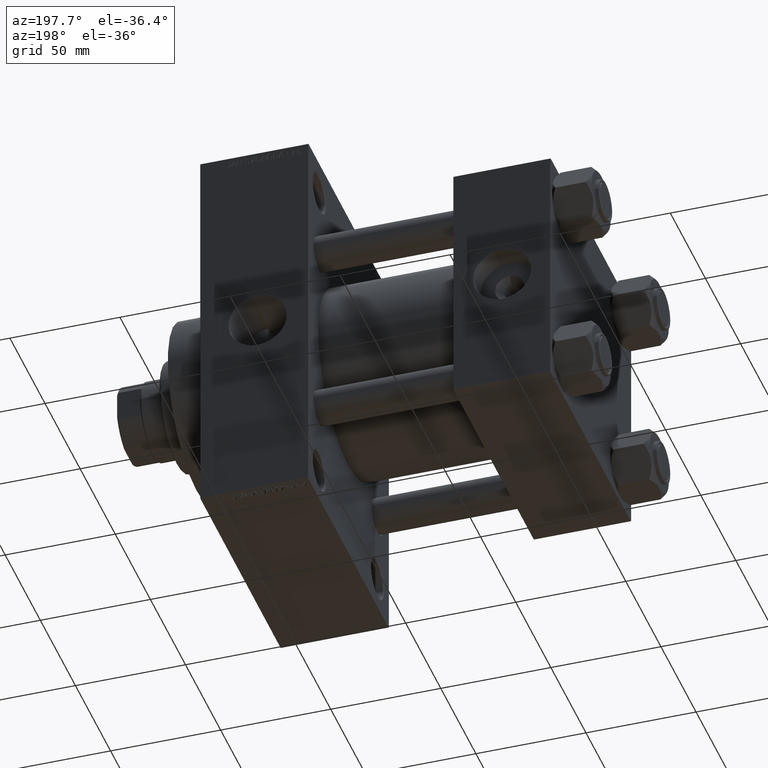
[diagram: clean part render]
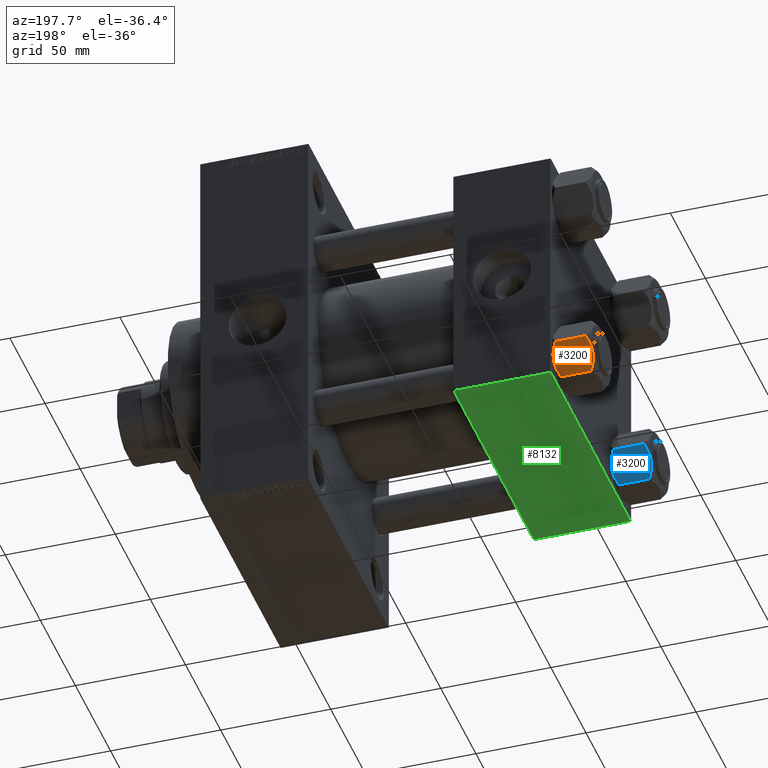
[diagram: same view with three faces highlighted in distinct colors, each labeled with its STEP entity id]
A machine part, auxiliary view with three faces highlighted in distinct colors.
Their STEP definitions:

[orange] entity #3200 — the highlighted planar face has unit normal (0, -0.866, 0.5).
#349 = ORIENTED_EDGE ( 'NONE', *, *, #29202, .F. ) ;
#1194 = CARTESIAN_POINT ( 'NONE',  ( -9.439480280627259745, -10.70497417113492311, -0.7317196846281081024 ) ) ;
#2113 = CARTESIAN_POINT ( 'NONE',  ( -15.22736220980736199, -0.6800686015852018818, -16.29368822085855584 ) ) ;
#2571 = PLANE ( 'NONE',  #9098 ) ;
#3150 = EDGE_LOOP ( 'NONE', ( #8799, #44068, #3888, #22445, #33556, #4075, #47022, #38614, #349, #12251 ) ) ;
#3200 = ADVANCED_FACE ( 'NONE', ( #14134 ), #2571, .F. ) ;
#3471 = CARTESIAN_POINT ( 'NONE',  ( -13.36540581434588226, -3.905071680002305534, -0.3836066851120543686 ) ) ;
#3532 = DIRECTION ( 'NONE',  ( -0.4999999999999994449, 0.8660254037844390407, 0.000000000000000000 ) ) ;
#3888 = ORIENTED_EDGE ( 'NONE', *, *, #19188, .F. ) ;
#4075 = ORIENTED_EDGE ( 'NONE', *, *, #6333, .F. ) ;
#4980 = CARTESIAN_POINT ( 'NONE',  ( -11.71500000000000874, -6.763658403556459753, 0.000000000000000000 ) ) ;
#5102 = B_SPLINE_CURVE_WITH_KNOTS ( 'NONE', 3,
 ( #18957, #34319, #34074, #45138, #6661, #22731, #49419, #41390 ),
 .UNSPECIFIED., .F., .F.,
 ( 4, 2, 2, 4 ),
 ( 4.472842641813524291E-07, 0.003945636373369312659, 0.005918230917921874813, 0.007890825462474436100 ),
 .UNSPECIFIED. ) ;
#5216 = DIRECTION ( 'NONE',  ( 0.4999999999999994449, -0.8660254037844390407, 0.000000000000000000 ) ) ;
#5640 = VECTOR ( 'NONE', #23017, 999.9999999999998863 ) ;
#5904 = CARTESIAN_POINT ( 'NONE',  ( -13.99051971937274530, -2.822342635977989289, -17.26828031537188934 ) ) ;
#5928 = EDGE_CURVE ( 'NONE', #28412, #33552, #24716, .T. ) ;
#6204 = EDGE_CURVE ( 'NONE', #39053, #34043, #33375, .T. ) ;
#6333 = EDGE_CURVE ( 'NONE', #28346, #39053, #24586, .T. ) ;
#6661 = CARTESIAN_POINT ( 'NONE',  ( -10.38662926516872353, -9.064464007571846338, -17.75691532989871746 ) ) ;
#6697 = DIRECTION ( 'NONE',  ( -0.000000000000000000, -0.000000000000000000, 1.000000000000000000 ) ) ;
#7135 = CARTESIAN_POINT ( 'NONE',  ( -11.71500000000000874, -6.763658403556459753, 0.000000000000000000 ) ) ;
#7256 = CARTESIAN_POINT ( 'NONE',  ( -15.52647173767732980, -0.1619957022864788043, -2.000000000000000000 ) ) ;
#7922 = CARTESIAN_POINT ( 'NONE',  ( -7.809999999999999609, -13.52731680711293727, -16.00000000000000000 ) ) ;
#8799 = ORIENTED_EDGE ( 'NONE', *, *, #5928, .F. ) ;
#9098 = AXIS2_PLACEMENT_3D ( 'NONE', #41084, #21947, #48380 ) ;
#9176 = EDGE_CURVE ( 'NONE', #28412, #35788, #21790, .T. ) ;
#9678 = CARTESIAN_POINT ( 'NONE',  ( -11.71500000000000874, -6.763658403556459753, -18.00000000000000000 ) ) ;
#11123 = CARTESIAN_POINT ( 'NONE',  ( -15.61999999999999567, 8.023367828467702033E-15, -16.00000000000000000 ) ) ;
#12251 = ORIENTED_EDGE ( 'NONE', *, *, #22512, .F. ) ;
#12856 = CARTESIAN_POINT ( 'NONE',  ( -7.809999999999999609, -13.52731680711293727, -16.00000000000000000 ) ) ;
#13661 = DIRECTION ( 'NONE',  ( 0.4999999999999994449, -0.8660254037844390407, 0.000000000000000000 ) ) ;
#14134 = FACE_OUTER_BOUND ( 'NONE', #3150, .T. ) ;
#14960 = CARTESIAN_POINT ( 'NONE',  ( -7.903528262322674358, -13.36532110482643354, -16.00000000000000000 ) ) ;
#15461 = LINE ( 'NONE', #7922, #5640 ) ;
#16293 = CARTESIAN_POINT ( 'NONE',  ( -7.903528262322674358, -13.36532110482643354, -2.000000000000000000 ) ) ;
#16542 = CARTESIAN_POINT ( 'NONE',  ( -11.05297796109637787, -7.910314210667872103, 9.086969458144130882E-15 ) ) ;
#17951 = CARTESIAN_POINT ( 'NONE',  ( -14.30591678195076533, -2.276058899034876681, -17.05261278537718894 ) ) ;
#18078 = CARTESIAN_POINT ( 'NONE',  ( -11.71500000000000874, -6.763658403556459753, 0.000000000000000000 ) ) ;
#18957 = CARTESIAN_POINT ( 'NONE',  ( -7.903528262322674358, -13.36532110482643354, -16.00000000000000000 ) ) ;
#19188 = EDGE_CURVE ( 'NONE', #19960, #35788, #24237, .T. ) ;
#19479 = B_SPLINE_CURVE_WITH_KNOTS ( 'NONE', 3,
 ( #4980, #16542, #23601, #1194, #35190, #20068, #23350, #16293 ),
 .UNSPECIFIED., .F., .F.,
 ( 4, 2, 2, 4 ),
 ( 0.007890825462474451713, 0.01181022244528557794, 0.01376992093669113758, 0.01572961942809669722 ),
 .UNSPECIFIED. ) ;
#19960 = VERTEX_POINT ( 'NONE', #44739 ) ;
#20068 = CARTESIAN_POINT ( 'NONE',  ( -8.506059550806618574, -12.32170630002230816, -1.434462921875002461 ) ) ;
#21174 = CARTESIAN_POINT ( 'NONE',  ( -15.52647173767732980, -0.1619957022864788043, -2.000000000000000000 ) ) ;
#21309 = EDGE_CURVE ( 'NONE', #38262, #49688, #15461, .T. ) ;
#21790 = LINE ( 'NONE', #33380, #28497 ) ;
#21947 = DIRECTION ( 'NONE',  ( 0.8660254037844390407, 0.4999999999999994449, 0.000000000000000000 ) ) ;
#22445 = ORIENTED_EDGE ( 'NONE', *, *, #37064, .F. ) ;
#22512 = EDGE_CURVE ( 'NONE', #33552, #47288, #5102, .T. ) ;
#22594 = CARTESIAN_POINT ( 'NONE',  ( -14.31545111198821552, -2.259544954993873311, -0.9142282604026915616 ) ) ;
#22656 = CARTESIAN_POINT ( 'NONE',  ( -7.809999999999999609, -13.52731680711293727, -16.00000000000000000 ) ) ;
#22731 = CARTESIAN_POINT ( 'NONE',  ( -11.04378428799595468, -7.926238119585997666, -17.94910618364700028 ) ) ;
#23017 = DIRECTION ( 'NONE',  ( -0.4999999999999994449, 0.8660254037844390407, 0.000000000000000000 ) ) ;
#23350 = CARTESIAN_POINT ( 'NONE',  ( -8.202637790192643052, -12.84724820552771085, -1.706311779141444829 ) ) ;
#23601 = CARTESIAN_POINT ( 'NONE',  ( -10.40215497533437805, -9.037572688741340343, -0.1971866459924474513 ) ) ;
#24237 = LINE ( 'NONE', #47391, #36112 ) ;
#24586 = LINE ( 'NONE', #28862, #30090 ) ;
#24632 = LINE ( 'NONE', #32435, #38892 ) ;
#24716 = LINE ( 'NONE', #22656, #30886 ) ;
#24771 = CARTESIAN_POINT ( 'NONE',  ( -12.37702203890362540, -5.617002596445037632, -18.00000000000000711 ) ) ;
#28346 = VERTEX_POINT ( 'NONE', #34785 ) ;
#28412 = VERTEX_POINT ( 'NONE', #12856 ) ;
#28497 = VECTOR ( 'NONE', #6697, 1000.000000000000000 ) ;
#28862 = CARTESIAN_POINT ( 'NONE',  ( -7.809999999999999609, -13.52731680711293727, -1.999999999999998224 ) ) ;
#29202 = EDGE_CURVE ( 'NONE', #47288, #38262, #32673, .T. ) ;
#30090 = VECTOR ( 'NONE', #5216, 999.9999999999998863 ) ;
#30886 = VECTOR ( 'NONE', #3532, 999.9999999999998863 ) ;
#31928 = DIRECTION ( 'NONE',  ( -0.000000000000000000, -0.000000000000000000, 1.000000000000000000 ) ) ;
#32435 = CARTESIAN_POINT ( 'NONE',  ( -15.61999999999999567, 8.023367828467702033E-15, -18.00000000000000000 ) ) ;
#32574 = CARTESIAN_POINT ( 'NONE',  ( -13.02784502466562699, -4.489744118371570281, -17.80281335400755083 ) ) ;
#32673 = B_SPLINE_CURVE_WITH_KNOTS ( 'NONE', 3,
 ( #9678, #24771, #32574, #5904, #17951, #33319, #2113, #44390 ),
 .UNSPECIFIED., .F., .F.,
 ( 4, 2, 2, 4 ),
 ( 0.007890825462474436100, 0.01181022244528555712, 0.01376992093669111850, 0.01572961942809667987 ),
 .UNSPECIFIED. ) ;
#33032 = EDGE_CURVE ( 'NONE', #49688, #28346, #24632, .T. ) ;
#33157 = CARTESIAN_POINT ( 'NONE',  ( -15.52647173767732980, -0.1619957022864788043, -16.00000000000000000 ) ) ;
#33195 = CARTESIAN_POINT ( 'NONE',  ( -12.38621571200405391, -5.601078687526916511, -0.05089381635300645190 ) ) ;
#33319 = CARTESIAN_POINT ( 'NONE',  ( -14.92394044919338825, -1.205610507090610461, -16.56553707812500065 ) ) ;
#33375 = B_SPLINE_CURVE_WITH_KNOTS ( 'NONE', 3,
 ( #7256, #48799, #22594, #3471, #45725, #33195, #37475, #18078 ),
 .UNSPECIFIED., .F., .F.,
 ( 4, 2, 2, 4 ),
 ( 4.472842641982724416E-07, 0.003945636373369324802, 0.005918230917921887824, 0.007890825462474451713 ),
 .UNSPECIFIED. ) ;
#33380 = CARTESIAN_POINT ( 'NONE',  ( -7.809999999999999609, -13.52731680711293727, -18.00000000000000000 ) ) ;
#33552 = VERTEX_POINT ( 'NONE', #14960 ) ;
#33556 = ORIENTED_EDGE ( 'NONE', *, *, #6204, .F. ) ;
#34043 = VERTEX_POINT ( 'NONE', #7135 ) ;
#34074 = CARTESIAN_POINT ( 'NONE',  ( -9.114548888011787753, -11.26777185211903820, -17.08577173959730899 ) ) ;
#34319 = CARTESIAN_POINT ( 'NONE',  ( -8.502393313253753249, -12.32805640973648664, -16.58801072835993651 ) ) ;
#34785 = CARTESIAN_POINT ( 'NONE',  ( -15.61999999999999567, 8.023367828467702033E-15, -1.999999999999998224 ) ) ;
#35190 = CARTESIAN_POINT ( 'NONE',  ( -9.124083218049237942, -11.25125790807803838, -0.9473872146228101698 ) ) ;
#35419 = CARTESIAN_POINT ( 'NONE',  ( -7.809999999999999609, -13.52731680711293727, -1.999999999999998224 ) ) ;
#35788 = VERTEX_POINT ( 'NONE', #35419 ) ;
#36112 = VECTOR ( 'NONE', #13661, 999.9999999999998863 ) ;
#37064 = EDGE_CURVE ( 'NONE', #34043, #19960, #19479, .T. ) ;
#37475 = CARTESIAN_POINT ( 'NONE',  ( -12.04818928091285635, -6.186557640478051567, 9.103910117089220044E-15 ) ) ;
#38262 = VERTEX_POINT ( 'NONE', #33157 ) ;
#38614 = ORIENTED_EDGE ( 'NONE', *, *, #21309, .F. ) ;
#38892 = VECTOR ( 'NONE', #31928, 1000.000000000000000 ) ;
#39053 = VERTEX_POINT ( 'NONE', #21174 ) ;
#40043 = CARTESIAN_POINT ( 'NONE',  ( -11.71500000000000874, -6.763658403556459753, -18.00000000000000000 ) ) ;
#41084 = CARTESIAN_POINT ( 'NONE',  ( -7.809999999999999609, -13.52731680711293727, -18.00000000000000000 ) ) ;
#41390 = CARTESIAN_POINT ( 'NONE',  ( -11.71500000000000874, -6.763658403556459753, -18.00000000000000000 ) ) ;
#44068 = ORIENTED_EDGE ( 'NONE', *, *, #9176, .T. ) ;
#44390 = CARTESIAN_POINT ( 'NONE',  ( -15.52647173767732980, -0.1619957022864788043, -16.00000000000000000 ) ) ;
#44739 = CARTESIAN_POINT ( 'NONE',  ( -7.903528262322674358, -13.36532110482643354, -2.000000000000000000 ) ) ;
#45138 = CARTESIAN_POINT ( 'NONE',  ( -10.06459418565412456, -9.622245127110602425, -17.61639331488794014 ) ) ;
#45725 = CARTESIAN_POINT ( 'NONE',  ( -13.04337073483128329, -4.462852799541069615, -0.2430846701012900901 ) ) ;
#47022 = ORIENTED_EDGE ( 'NONE', *, *, #33032, .F. ) ;
#47288 = VERTEX_POINT ( 'NONE', #40043 ) ;
#47391 = CARTESIAN_POINT ( 'NONE',  ( -7.809999999999999609, -13.52731680711293727, -1.999999999999998224 ) ) ;
#48380 = DIRECTION ( 'NONE',  ( -0.4999999999999993894, 0.8660254037844389297, 0.000000000000000000 ) ) ;
#48799 = CARTESIAN_POINT ( 'NONE',  ( -14.92760668674625002, -1.199260397376427090, -1.411989271640064825 ) ) ;
#49419 = CARTESIAN_POINT ( 'NONE',  ( -11.38181071908714692, -7.340759166634859945, -18.00000000000001421 ) ) ;
#49688 = VERTEX_POINT ( 'NONE', #11123 ) ;

[blue] entity #3200 — the highlighted planar face has unit normal (0, -0.866, 0.5).
#349 = ORIENTED_EDGE ( 'NONE', *, *, #29202, .F. ) ;
#1194 = CARTESIAN_POINT ( 'NONE',  ( -9.439480280627259745, -10.70497417113492311, -0.7317196846281081024 ) ) ;
#2113 = CARTESIAN_POINT ( 'NONE',  ( -15.22736220980736199, -0.6800686015852018818, -16.29368822085855584 ) ) ;
#2571 = PLANE ( 'NONE',  #9098 ) ;
#3150 = EDGE_LOOP ( 'NONE', ( #8799, #44068, #3888, #22445, #33556, #4075, #47022, #38614, #349, #12251 ) ) ;
#3200 = ADVANCED_FACE ( 'NONE', ( #14134 ), #2571, .F. ) ;
#3471 = CARTESIAN_POINT ( 'NONE',  ( -13.36540581434588226, -3.905071680002305534, -0.3836066851120543686 ) ) ;
#3532 = DIRECTION ( 'NONE',  ( -0.4999999999999994449, 0.8660254037844390407, 0.000000000000000000 ) ) ;
#3888 = ORIENTED_EDGE ( 'NONE', *, *, #19188, .F. ) ;
#4075 = ORIENTED_EDGE ( 'NONE', *, *, #6333, .F. ) ;
#4980 = CARTESIAN_POINT ( 'NONE',  ( -11.71500000000000874, -6.763658403556459753, 0.000000000000000000 ) ) ;
#5102 = B_SPLINE_CURVE_WITH_KNOTS ( 'NONE', 3,
 ( #18957, #34319, #34074, #45138, #6661, #22731, #49419, #41390 ),
 .UNSPECIFIED., .F., .F.,
 ( 4, 2, 2, 4 ),
 ( 4.472842641813524291E-07, 0.003945636373369312659, 0.005918230917921874813, 0.007890825462474436100 ),
 .UNSPECIFIED. ) ;
#5216 = DIRECTION ( 'NONE',  ( 0.4999999999999994449, -0.8660254037844390407, 0.000000000000000000 ) ) ;
#5640 = VECTOR ( 'NONE', #23017, 999.9999999999998863 ) ;
#5904 = CARTESIAN_POINT ( 'NONE',  ( -13.99051971937274530, -2.822342635977989289, -17.26828031537188934 ) ) ;
#5928 = EDGE_CURVE ( 'NONE', #28412, #33552, #24716, .T. ) ;
#6204 = EDGE_CURVE ( 'NONE', #39053, #34043, #33375, .T. ) ;
#6333 = EDGE_CURVE ( 'NONE', #28346, #39053, #24586, .T. ) ;
#6661 = CARTESIAN_POINT ( 'NONE',  ( -10.38662926516872353, -9.064464007571846338, -17.75691532989871746 ) ) ;
#6697 = DIRECTION ( 'NONE',  ( -0.000000000000000000, -0.000000000000000000, 1.000000000000000000 ) ) ;
#7135 = CARTESIAN_POINT ( 'NONE',  ( -11.71500000000000874, -6.763658403556459753, 0.000000000000000000 ) ) ;
#7256 = CARTESIAN_POINT ( 'NONE',  ( -15.52647173767732980, -0.1619957022864788043, -2.000000000000000000 ) ) ;
#7922 = CARTESIAN_POINT ( 'NONE',  ( -7.809999999999999609, -13.52731680711293727, -16.00000000000000000 ) ) ;
#8799 = ORIENTED_EDGE ( 'NONE', *, *, #5928, .F. ) ;
#9098 = AXIS2_PLACEMENT_3D ( 'NONE', #41084, #21947, #48380 ) ;
#9176 = EDGE_CURVE ( 'NONE', #28412, #35788, #21790, .T. ) ;
#9678 = CARTESIAN_POINT ( 'NONE',  ( -11.71500000000000874, -6.763658403556459753, -18.00000000000000000 ) ) ;
#11123 = CARTESIAN_POINT ( 'NONE',  ( -15.61999999999999567, 8.023367828467702033E-15, -16.00000000000000000 ) ) ;
#12251 = ORIENTED_EDGE ( 'NONE', *, *, #22512, .F. ) ;
#12856 = CARTESIAN_POINT ( 'NONE',  ( -7.809999999999999609, -13.52731680711293727, -16.00000000000000000 ) ) ;
#13661 = DIRECTION ( 'NONE',  ( 0.4999999999999994449, -0.8660254037844390407, 0.000000000000000000 ) ) ;
#14134 = FACE_OUTER_BOUND ( 'NONE', #3150, .T. ) ;
#14960 = CARTESIAN_POINT ( 'NONE',  ( -7.903528262322674358, -13.36532110482643354, -16.00000000000000000 ) ) ;
#15461 = LINE ( 'NONE', #7922, #5640 ) ;
#16293 = CARTESIAN_POINT ( 'NONE',  ( -7.903528262322674358, -13.36532110482643354, -2.000000000000000000 ) ) ;
#16542 = CARTESIAN_POINT ( 'NONE',  ( -11.05297796109637787, -7.910314210667872103, 9.086969458144130882E-15 ) ) ;
#17951 = CARTESIAN_POINT ( 'NONE',  ( -14.30591678195076533, -2.276058899034876681, -17.05261278537718894 ) ) ;
#18078 = CARTESIAN_POINT ( 'NONE',  ( -11.71500000000000874, -6.763658403556459753, 0.000000000000000000 ) ) ;
#18957 = CARTESIAN_POINT ( 'NONE',  ( -7.903528262322674358, -13.36532110482643354, -16.00000000000000000 ) ) ;
#19188 = EDGE_CURVE ( 'NONE', #19960, #35788, #24237, .T. ) ;
#19479 = B_SPLINE_CURVE_WITH_KNOTS ( 'NONE', 3,
 ( #4980, #16542, #23601, #1194, #35190, #20068, #23350, #16293 ),
 .UNSPECIFIED., .F., .F.,
 ( 4, 2, 2, 4 ),
 ( 0.007890825462474451713, 0.01181022244528557794, 0.01376992093669113758, 0.01572961942809669722 ),
 .UNSPECIFIED. ) ;
#19960 = VERTEX_POINT ( 'NONE', #44739 ) ;
#20068 = CARTESIAN_POINT ( 'NONE',  ( -8.506059550806618574, -12.32170630002230816, -1.434462921875002461 ) ) ;
#21174 = CARTESIAN_POINT ( 'NONE',  ( -15.52647173767732980, -0.1619957022864788043, -2.000000000000000000 ) ) ;
#21309 = EDGE_CURVE ( 'NONE', #38262, #49688, #15461, .T. ) ;
#21790 = LINE ( 'NONE', #33380, #28497 ) ;
#21947 = DIRECTION ( 'NONE',  ( 0.8660254037844390407, 0.4999999999999994449, 0.000000000000000000 ) ) ;
#22445 = ORIENTED_EDGE ( 'NONE', *, *, #37064, .F. ) ;
#22512 = EDGE_CURVE ( 'NONE', #33552, #47288, #5102, .T. ) ;
#22594 = CARTESIAN_POINT ( 'NONE',  ( -14.31545111198821552, -2.259544954993873311, -0.9142282604026915616 ) ) ;
#22656 = CARTESIAN_POINT ( 'NONE',  ( -7.809999999999999609, -13.52731680711293727, -16.00000000000000000 ) ) ;
#22731 = CARTESIAN_POINT ( 'NONE',  ( -11.04378428799595468, -7.926238119585997666, -17.94910618364700028 ) ) ;
#23017 = DIRECTION ( 'NONE',  ( -0.4999999999999994449, 0.8660254037844390407, 0.000000000000000000 ) ) ;
#23350 = CARTESIAN_POINT ( 'NONE',  ( -8.202637790192643052, -12.84724820552771085, -1.706311779141444829 ) ) ;
#23601 = CARTESIAN_POINT ( 'NONE',  ( -10.40215497533437805, -9.037572688741340343, -0.1971866459924474513 ) ) ;
#24237 = LINE ( 'NONE', #47391, #36112 ) ;
#24586 = LINE ( 'NONE', #28862, #30090 ) ;
#24632 = LINE ( 'NONE', #32435, #38892 ) ;
#24716 = LINE ( 'NONE', #22656, #30886 ) ;
#24771 = CARTESIAN_POINT ( 'NONE',  ( -12.37702203890362540, -5.617002596445037632, -18.00000000000000711 ) ) ;
#28346 = VERTEX_POINT ( 'NONE', #34785 ) ;
#28412 = VERTEX_POINT ( 'NONE', #12856 ) ;
#28497 = VECTOR ( 'NONE', #6697, 1000.000000000000000 ) ;
#28862 = CARTESIAN_POINT ( 'NONE',  ( -7.809999999999999609, -13.52731680711293727, -1.999999999999998224 ) ) ;
#29202 = EDGE_CURVE ( 'NONE', #47288, #38262, #32673, .T. ) ;
#30090 = VECTOR ( 'NONE', #5216, 999.9999999999998863 ) ;
#30886 = VECTOR ( 'NONE', #3532, 999.9999999999998863 ) ;
#31928 = DIRECTION ( 'NONE',  ( -0.000000000000000000, -0.000000000000000000, 1.000000000000000000 ) ) ;
#32435 = CARTESIAN_POINT ( 'NONE',  ( -15.61999999999999567, 8.023367828467702033E-15, -18.00000000000000000 ) ) ;
#32574 = CARTESIAN_POINT ( 'NONE',  ( -13.02784502466562699, -4.489744118371570281, -17.80281335400755083 ) ) ;
#32673 = B_SPLINE_CURVE_WITH_KNOTS ( 'NONE', 3,
 ( #9678, #24771, #32574, #5904, #17951, #33319, #2113, #44390 ),
 .UNSPECIFIED., .F., .F.,
 ( 4, 2, 2, 4 ),
 ( 0.007890825462474436100, 0.01181022244528555712, 0.01376992093669111850, 0.01572961942809667987 ),
 .UNSPECIFIED. ) ;
#33032 = EDGE_CURVE ( 'NONE', #49688, #28346, #24632, .T. ) ;
#33157 = CARTESIAN_POINT ( 'NONE',  ( -15.52647173767732980, -0.1619957022864788043, -16.00000000000000000 ) ) ;
#33195 = CARTESIAN_POINT ( 'NONE',  ( -12.38621571200405391, -5.601078687526916511, -0.05089381635300645190 ) ) ;
#33319 = CARTESIAN_POINT ( 'NONE',  ( -14.92394044919338825, -1.205610507090610461, -16.56553707812500065 ) ) ;
#33375 = B_SPLINE_CURVE_WITH_KNOTS ( 'NONE', 3,
 ( #7256, #48799, #22594, #3471, #45725, #33195, #37475, #18078 ),
 .UNSPECIFIED., .F., .F.,
 ( 4, 2, 2, 4 ),
 ( 4.472842641982724416E-07, 0.003945636373369324802, 0.005918230917921887824, 0.007890825462474451713 ),
 .UNSPECIFIED. ) ;
#33380 = CARTESIAN_POINT ( 'NONE',  ( -7.809999999999999609, -13.52731680711293727, -18.00000000000000000 ) ) ;
#33552 = VERTEX_POINT ( 'NONE', #14960 ) ;
#33556 = ORIENTED_EDGE ( 'NONE', *, *, #6204, .F. ) ;
#34043 = VERTEX_POINT ( 'NONE', #7135 ) ;
#34074 = CARTESIAN_POINT ( 'NONE',  ( -9.114548888011787753, -11.26777185211903820, -17.08577173959730899 ) ) ;
#34319 = CARTESIAN_POINT ( 'NONE',  ( -8.502393313253753249, -12.32805640973648664, -16.58801072835993651 ) ) ;
#34785 = CARTESIAN_POINT ( 'NONE',  ( -15.61999999999999567, 8.023367828467702033E-15, -1.999999999999998224 ) ) ;
#35190 = CARTESIAN_POINT ( 'NONE',  ( -9.124083218049237942, -11.25125790807803838, -0.9473872146228101698 ) ) ;
#35419 = CARTESIAN_POINT ( 'NONE',  ( -7.809999999999999609, -13.52731680711293727, -1.999999999999998224 ) ) ;
#35788 = VERTEX_POINT ( 'NONE', #35419 ) ;
#36112 = VECTOR ( 'NONE', #13661, 999.9999999999998863 ) ;
#37064 = EDGE_CURVE ( 'NONE', #34043, #19960, #19479, .T. ) ;
#37475 = CARTESIAN_POINT ( 'NONE',  ( -12.04818928091285635, -6.186557640478051567, 9.103910117089220044E-15 ) ) ;
#38262 = VERTEX_POINT ( 'NONE', #33157 ) ;
#38614 = ORIENTED_EDGE ( 'NONE', *, *, #21309, .F. ) ;
#38892 = VECTOR ( 'NONE', #31928, 1000.000000000000000 ) ;
#39053 = VERTEX_POINT ( 'NONE', #21174 ) ;
#40043 = CARTESIAN_POINT ( 'NONE',  ( -11.71500000000000874, -6.763658403556459753, -18.00000000000000000 ) ) ;
#41084 = CARTESIAN_POINT ( 'NONE',  ( -7.809999999999999609, -13.52731680711293727, -18.00000000000000000 ) ) ;
#41390 = CARTESIAN_POINT ( 'NONE',  ( -11.71500000000000874, -6.763658403556459753, -18.00000000000000000 ) ) ;
#44068 = ORIENTED_EDGE ( 'NONE', *, *, #9176, .T. ) ;
#44390 = CARTESIAN_POINT ( 'NONE',  ( -15.52647173767732980, -0.1619957022864788043, -16.00000000000000000 ) ) ;
#44739 = CARTESIAN_POINT ( 'NONE',  ( -7.903528262322674358, -13.36532110482643354, -2.000000000000000000 ) ) ;
#45138 = CARTESIAN_POINT ( 'NONE',  ( -10.06459418565412456, -9.622245127110602425, -17.61639331488794014 ) ) ;
#45725 = CARTESIAN_POINT ( 'NONE',  ( -13.04337073483128329, -4.462852799541069615, -0.2430846701012900901 ) ) ;
#47022 = ORIENTED_EDGE ( 'NONE', *, *, #33032, .F. ) ;
#47288 = VERTEX_POINT ( 'NONE', #40043 ) ;
#47391 = CARTESIAN_POINT ( 'NONE',  ( -7.809999999999999609, -13.52731680711293727, -1.999999999999998224 ) ) ;
#48380 = DIRECTION ( 'NONE',  ( -0.4999999999999993894, 0.8660254037844389297, 0.000000000000000000 ) ) ;
#48799 = CARTESIAN_POINT ( 'NONE',  ( -14.92760668674625002, -1.199260397376427090, -1.411989271640064825 ) ) ;
#49419 = CARTESIAN_POINT ( 'NONE',  ( -11.38181071908714692, -7.340759166634859945, -18.00000000000001421 ) ) ;
#49688 = VERTEX_POINT ( 'NONE', #11123 ) ;

[green] entity #8132 — the highlighted planar face has unit normal (0, 0, -1).
#160 = FACE_OUTER_BOUND ( 'NONE', #8770, .T. ) ;
#985 = EDGE_CURVE ( 'NONE', #31440, #48851, #38702, .T. ) ;
#1660 = CARTESIAN_POINT ( 'NONE',  ( 0.000000000000000000, -57.00000000000000711, -57.50000000000000711 ) ) ;
#7827 = EDGE_CURVE ( 'NONE', #40254, #48851, #49077, .T. ) ;
#8132 = ADVANCED_FACE ( 'NONE', ( #160 ), #30871, .T. ) ;
#8224 = VECTOR ( 'NONE', #46237, 1000.000000000000000 ) ;
#8770 = EDGE_LOOP ( 'NONE', ( #47670, #32240, #31566, #38501 ) ) ;
#9097 = LINE ( 'NONE', #44306, #20823 ) ;
#10452 = CARTESIAN_POINT ( 'NONE',  ( 0.000000000000000000, 57.00000000000002132, -57.49999999999999289 ) ) ;
#11300 = DIRECTION ( 'NONE',  ( -1.000000000000000000, 0.000000000000000000, 0.000000000000000000 ) ) ;
#14972 = VECTOR ( 'NONE', #24230, 1000.000000000000000 ) ;
#15567 = AXIS2_PLACEMENT_3D ( 'NONE', #46211, #27098, #42457 ) ;
#19038 = CARTESIAN_POINT ( 'NONE',  ( 44.00000000000000000, 57.00000000000002132, -57.49999999999999289 ) ) ;
#19419 = EDGE_CURVE ( 'NONE', #31440, #31142, #9097, .T. ) ;
#20311 = CARTESIAN_POINT ( 'NONE',  ( 0.000000000000000000, 57.49999999999999289, -57.49999999999999289 ) ) ;
#20823 = VECTOR ( 'NONE', #28207, 1000.000000000000000 ) ;
#24230 = DIRECTION ( 'NONE',  ( 0.000000000000000000, -1.000000000000000000, -1.206764157201257045E-16 ) ) ;
#27098 = DIRECTION ( 'NONE',  ( 0.000000000000000000, 1.206764157201257045E-16, -1.000000000000000000 ) ) ;
#28207 = DIRECTION ( 'NONE',  ( 1.000000000000000000, 0.000000000000000000, 0.000000000000000000 ) ) ;
#29944 = CARTESIAN_POINT ( 'NONE',  ( 0.000000000000000000, -57.00000000000000711, -57.50000000000000711 ) ) ;
#30871 = PLANE ( 'NONE',  #15567 ) ;
#31142 = VERTEX_POINT ( 'NONE', #19038 ) ;
#31440 = VERTEX_POINT ( 'NONE', #10452 ) ;
#31566 = ORIENTED_EDGE ( 'NONE', *, *, #42319, .T. ) ;
#32240 = ORIENTED_EDGE ( 'NONE', *, *, #19419, .T. ) ;
#36327 = CARTESIAN_POINT ( 'NONE',  ( 44.00000000000000000, 57.49999999999999289, -57.49999999999999289 ) ) ;
#38501 = ORIENTED_EDGE ( 'NONE', *, *, #7827, .T. ) ;
#38702 = LINE ( 'NONE', #20311, #8224 ) ;
#40254 = VERTEX_POINT ( 'NONE', #48547 ) ;
#42319 = EDGE_CURVE ( 'NONE', #31142, #40254, #43868, .T. ) ;
#42457 = DIRECTION ( 'NONE',  ( 0.000000000000000000, 1.000000000000000000, 1.206764157201257045E-16 ) ) ;
#43868 = LINE ( 'NONE', #36327, #14972 ) ;
#44306 = CARTESIAN_POINT ( 'NONE',  ( 44.00000000000000000, 57.00000000000002132, -57.49999999999999289 ) ) ;
#45321 = VECTOR ( 'NONE', #11300, 1000.000000000000000 ) ;
#46211 = CARTESIAN_POINT ( 'NONE',  ( 44.00000000000000000, 57.49999999999999289, -57.49999999999999289 ) ) ;
#46237 = DIRECTION ( 'NONE',  ( 0.000000000000000000, -1.000000000000000000, -1.206764157201257045E-16 ) ) ;
#47670 = ORIENTED_EDGE ( 'NONE', *, *, #985, .F. ) ;
#48547 = CARTESIAN_POINT ( 'NONE',  ( 44.00000000000000000, -57.00000000000000711, -57.50000000000000711 ) ) ;
#48851 = VERTEX_POINT ( 'NONE', #1660 ) ;
#49077 = LINE ( 'NONE', #29944, #45321 ) ;